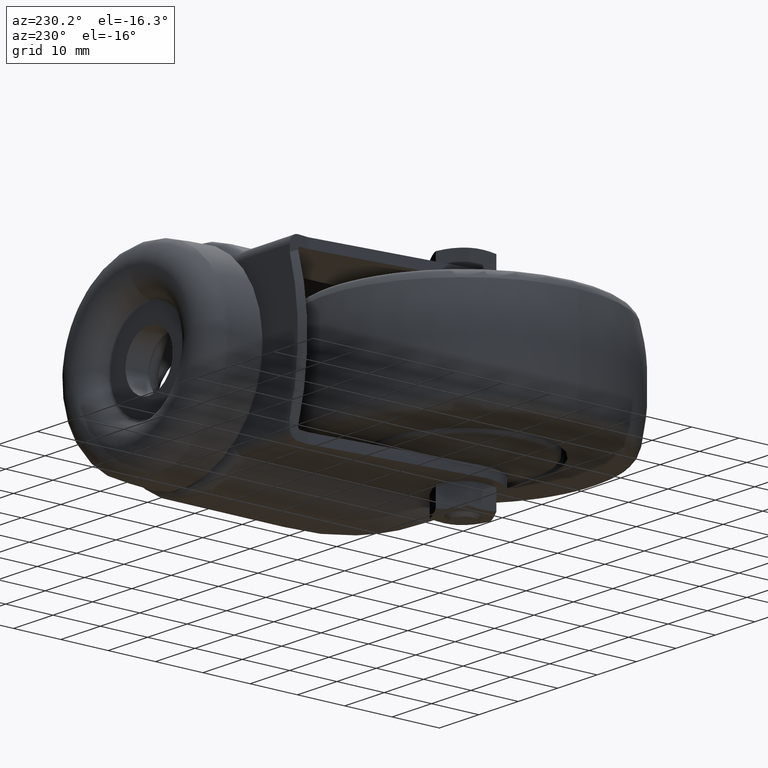
[diagram: clean part render]
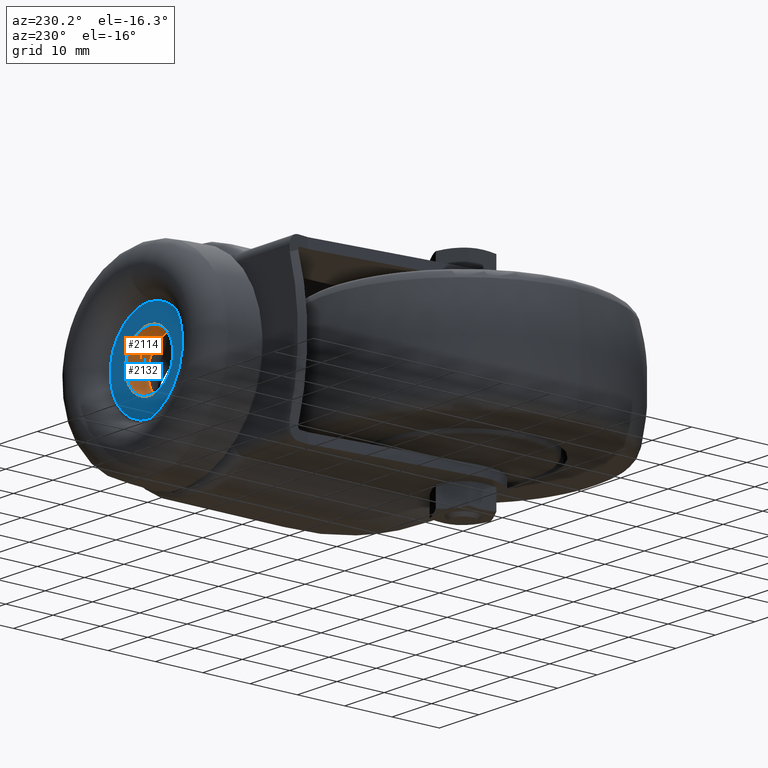
[diagram: same view with the hole feature highlighted: cylindrical wall and planar end face, labeled with their STEP entity ids]
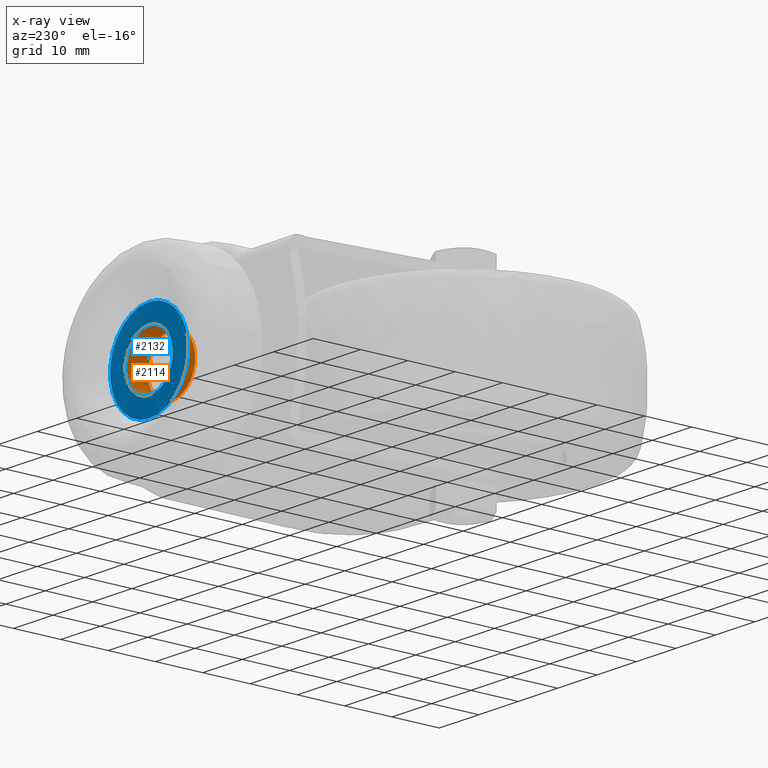
[diagram: x-ray of the same camera — body ghosted, the hole faces saturated]
A machine part, auxiliary view. The highlighted faces form one hole feature of diameter 12 mm: the cylindrical wall (entity #2114, orange) and its adjacent planar end face (entity #2132, blue) — they share a circular edge in the B-rep.
The next image is the same camera in x-ray (body ghosted, the hole faces saturated) — the bore reads through the body.
Wall:
#153=CYLINDRICAL_SURFACE('',#2564,6.);
#323=FACE_OUTER_BOUND('',#480,.T.);
#480=EDGE_LOOP('',(#1588,#1589,#1590,#1591));
#632=LINE('',#3906,#711);
#711=VECTOR('',#3031,6.);
#813=CIRCLE('',#2565,6.);
#814=CIRCLE('',#2566,6.);
#986=VERTEX_POINT('',#3903);
#987=VERTEX_POINT('',#3905);
#1208=EDGE_CURVE('',#986,#986,#813,.T.);
#1209=EDGE_CURVE('',#986,#987,#632,.T.);
#1210=EDGE_CURVE('',#987,#987,#814,.T.);
#1588=ORIENTED_EDGE('',*,*,#1208,.T.);
#1589=ORIENTED_EDGE('',*,*,#1209,.T.);
#1590=ORIENTED_EDGE('',*,*,#1210,.F.);
#1591=ORIENTED_EDGE('',*,*,#1209,.F.);
#2114=ADVANCED_FACE('',(#323),#153,.F.);
#2564=AXIS2_PLACEMENT_3D('',#3902,#3027,#3028);
#2565=AXIS2_PLACEMENT_3D('',#3904,#3029,#3030);
#2566=AXIS2_PLACEMENT_3D('',#3907,#3032,#3033);
#3027=DIRECTION('center_axis',(0.,1.,0.));
#3028=DIRECTION('ref_axis',(0.,0.,-1.));
#3029=DIRECTION('center_axis',(0.,-1.,0.));
#3030=DIRECTION('ref_axis',(0.,0.,-1.));
#3031=DIRECTION('',(0.,1.,0.));
#3032=DIRECTION('center_axis',(0.,-1.,0.));
#3033=DIRECTION('ref_axis',(0.,0.,-1.));
#3902=CARTESIAN_POINT('Origin',(21.,46.47,0.));
#3903=CARTESIAN_POINT('',(21.,44.1,6.));
#3904=CARTESIAN_POINT('Origin',(21.,44.1,0.));
#3905=CARTESIAN_POINT('',(21.,48.84,6.));
#3906=CARTESIAN_POINT('',(21.,46.47,6.));
#3907=CARTESIAN_POINT('Origin',(21.,48.84,0.));
End face:
#190=FACE_BOUND('',#503,.T.);
#227=PLANE('',#2596);
#341=FACE_OUTER_BOUND('',#502,.T.);
#502=EDGE_LOOP('',(#1679));
#503=EDGE_LOOP('',(#1680));
#814=CIRCLE('',#2566,6.);
#826=CIRCLE('',#2597,9.8957334149857);
#987=VERTEX_POINT('',#3905);
#1000=VERTEX_POINT('',#3988);
#1210=EDGE_CURVE('',#987,#987,#814,.T.);
#1238=EDGE_CURVE('',#1000,#1000,#826,.T.);
#1679=ORIENTED_EDGE('',*,*,#1238,.F.);
#1680=ORIENTED_EDGE('',*,*,#1210,.T.);
#2132=ADVANCED_FACE('',(#341,#190),#227,.T.);
#2566=AXIS2_PLACEMENT_3D('',#3907,#3032,#3033);
#2596=AXIS2_PLACEMENT_3D('',#3987,#3106,#3107);
#2597=AXIS2_PLACEMENT_3D('',#3989,#3108,#3109);
#3032=DIRECTION('center_axis',(0.,-1.,0.));
#3033=DIRECTION('ref_axis',(0.,0.,-1.));
#3106=DIRECTION('center_axis',(0.,1.,0.));
#3107=DIRECTION('ref_axis',(0.,0.,1.));
#3108=DIRECTION('center_axis',(0.,-1.,0.));
#3109=DIRECTION('ref_axis',(0.,0.,-1.));
#3905=CARTESIAN_POINT('',(21.,48.84,6.));
#3907=CARTESIAN_POINT('Origin',(21.,48.84,0.));
#3987=CARTESIAN_POINT('Origin',(30.8957334149857,48.84,0.));
#3988=CARTESIAN_POINT('',(21.,48.84,9.8957334149857));
#3989=CARTESIAN_POINT('Origin',(21.,48.84,0.));